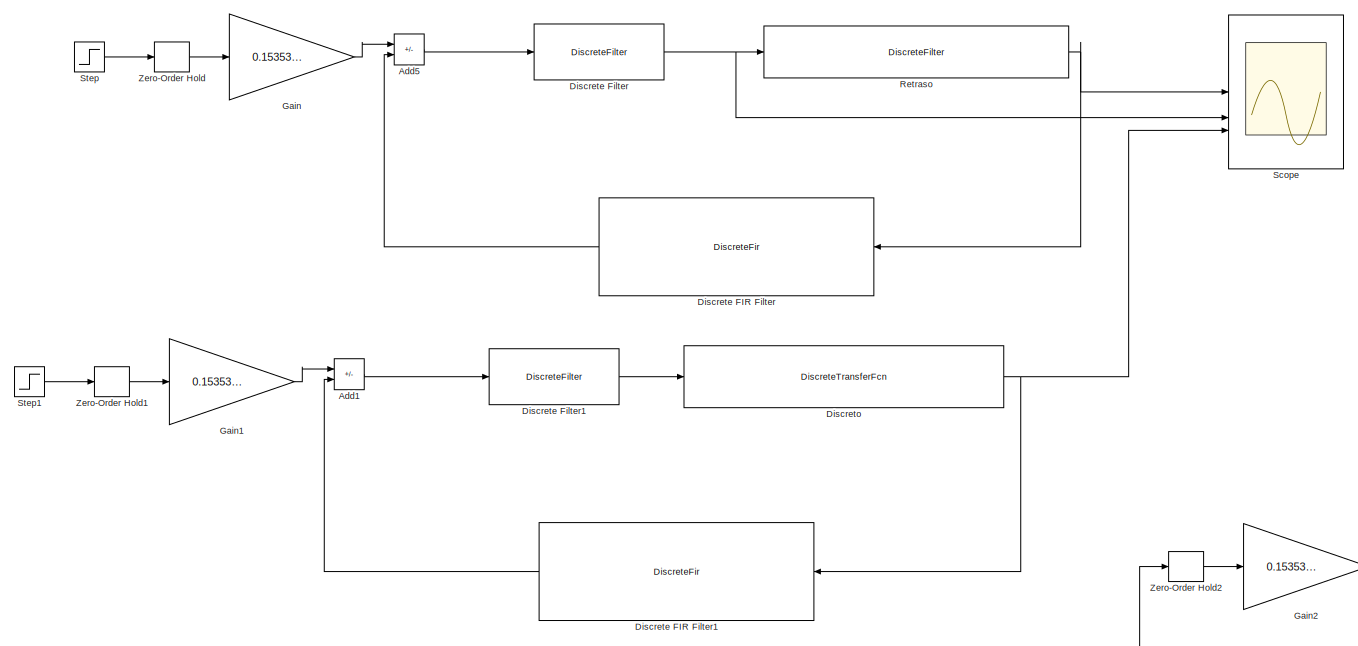
[diagram: root canvas - part 1/2, top left region]
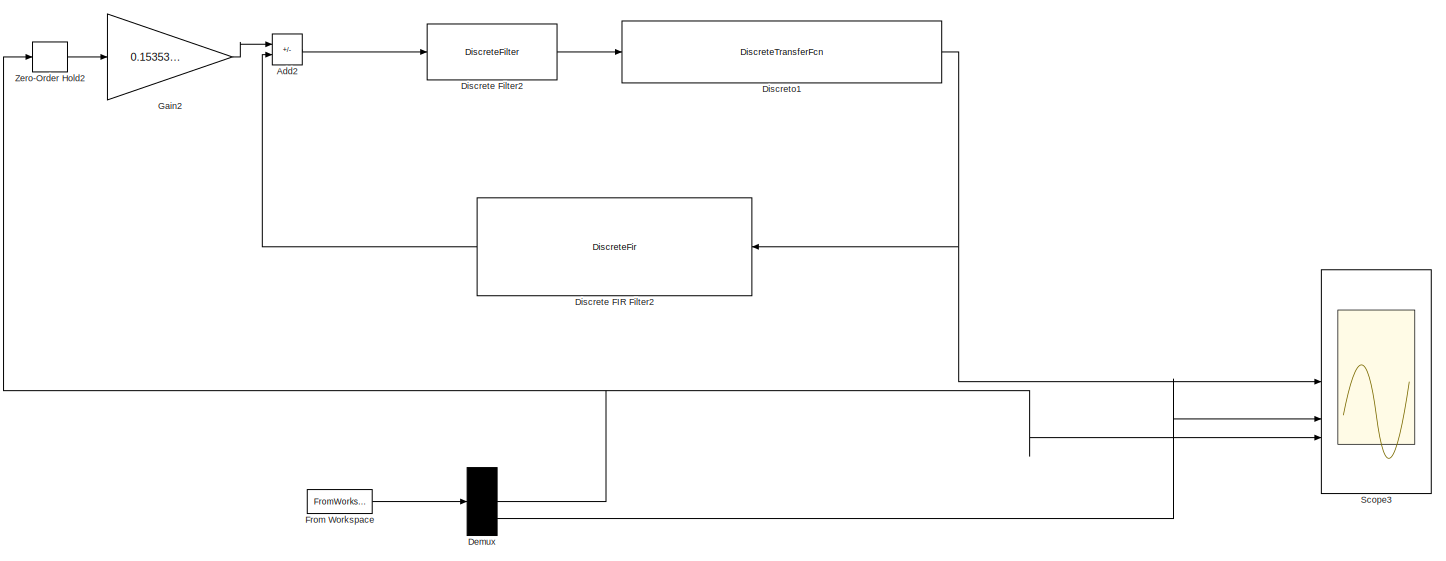
[diagram: root canvas - part 2/2, bottom right region]
MODEL slx_4d5562be1bf1
KIND model
CONFIG AbsTol = auto
CONFIG EnableMultiTasking = off
CONFIG FixedStep = auto
CONFIG MaxStep = auto
CONFIG MinStep = auto
CONFIG RelTol = 1e-3
CONFIG SampleTimeConstraint = Unconstrained
CONFIG SolverName = VariableStepAuto
CONFIG StartTime = 0.0
CONFIG StopTime = 60.0
BLOCK [Sum] Add1
  IconShape = rectangular
  Inputs = +-
BLOCK [Sum] Add2
  IconShape = rectangular
  Inputs = +-
BLOCK [Sum] Add5
  IconShape = rectangular
  Inputs = +-
BLOCK [Demux] Demux
  Outputs = 3
BLOCK [DiscreteFir] Discrete FIR Filter
  Coefficients = [ 2.079050275705499 -1.925512816401701]
  InputPortMap = u0
  NameLocation = top
  OutputPortMap = o0
BLOCK [DiscreteFir] Discrete FIR Filter1
  Coefficients = [ 2.079050275705499 -1.925512816401701]
  InputPortMap = u0
  NameLocation = top
  OutputPortMap = o0
BLOCK [DiscreteFir] Discrete FIR Filter2
  Coefficients = [ 2.079050275705499 -1.925512816401701]
  InputPortMap = u0
  NameLocation = top
  OutputPortMap = o0
BLOCK [DiscreteFilter] Discrete Filter
  Denominator = [1 -0.579460982817054]
  InputPortMap = u0
BLOCK [DiscreteFilter] Discrete Filter1
  Denominator = [1 -0.579460982817054]
  InputPortMap = u0
BLOCK [DiscreteFilter] Discrete Filter2
  Denominator = [1 -0.579460982817054]
  InputPortMap = u0
BLOCK [DiscreteTransferFcn] Discreto
  Denominator = [1 -1.946644960048911 0.946644960048911]
  InputPortMap = u0
  Numerator = [0 0.002856503471888 0.002804770356280]
BLOCK [DiscreteTransferFcn] Discreto1
  Denominator = [1 -1.946644960048911 0.946644960048911]
  InputPortMap = u0
  Numerator = [0 0.002856503471888 0.002804770356280]
BLOCK [FromWorkspace] From Workspace
  SampleTime = 0.01
  VariableName = datos
BLOCK [Gain] Gain
  Gain = 0.153537459303763
BLOCK [Gain] Gain1
  Gain = 0.153537459303763
BLOCK [Gain] Gain2
  Gain = 0.153537459303763
BLOCK [DiscreteFilter] Retraso
  Denominator = [1 -1.946644960048911 0.946644960048911]
  InputPortMap = u0
  Numerator = [0 0.002856503471888 0.002804770356280]
BLOCK [Scope] Scope
  Floating = off
  NumInputPorts = 3
  ScopeSpecificationString = Simulink.scopes.TimeScopeBlockCfg('CurrentConfiguration', extmgr.ConfigurationSet(extmgr.Configuration('Core','General UI',true),extmgr.Configuration('Core','Source UI',true),extmgr.Configuration('Sources','WiredSimulink',true),extmgr.Configuration('Visuals','Time Domain',true,'SerializedDisplays',{struct('MinYLimReal','0.1079','MaxYLimReal','0.94679','YLabelReal','','MinYLimMag','0.1079','MaxYLim...<+1797ch>
BLOCK [Scope] Scope3
  Floating = off
  NumInputPorts = 3
  ScopeSpecificationString = Simulink.scopes.TimeScopeBlockCfg('CurrentConfiguration', extmgr.ConfigurationSet(extmgr.Configuration('Core','General UI',true),extmgr.Configuration('Core','Source UI',true),extmgr.Configuration('Sources','WiredSimulink',true,'DataLoggingVariableName','ScopeData1'),extmgr.Configuration('Visuals','Time Domain',true,'SerializedDisplays',{struct('MinYLimReal','-6.68462','MaxYLimReal','20.40653','YLa...<+1635ch>
BLOCK [Step] Step
  SampleTime = 0
  Time = 0
BLOCK [Step] Step1
  SampleTime = 0
  Time = 0
BLOCK [ZeroOrderHold] Zero-Order Hold
  SampleTime = 0.01
BLOCK [ZeroOrderHold] Zero-Order Hold1
  SampleTime = 0.01
BLOCK [ZeroOrderHold] Zero-Order Hold2
  SampleTime = 0.01
LINE Add1:1 -> Discrete Filter1:1
LINE Add2:1 -> Discrete Filter2:1
LINE Add5:1 -> Discrete Filter:1
NET Demux:2 -> Scope3:3, Zero-Order Hold2:1
LINE Demux:3 -> Scope3:2
LINE Discrete FIR Filter1:1 -> Add1:2
LINE Discrete FIR Filter2:1 -> Add2:2
LINE Discrete FIR Filter:1 -> Add5:2
LINE Discrete Filter1:1 -> Discreto:1
LINE Discrete Filter2:1 -> Discreto1:1
NET Discrete Filter:1 -> Retraso:1, Scope:2
NET Discreto1:1 -> Discrete FIR Filter2:1, Scope3:1
NET Discreto:1 -> Discrete FIR Filter1:1, Scope:3
LINE From Workspace:1 -> Demux:1
LINE Gain1:1 -> Add1:1
LINE Gain2:1 -> Add2:1
LINE Gain:1 -> Add5:1
NET Retraso:1 -> Discrete FIR Filter:1, Scope:1
LINE Step1:1 -> Zero-Order Hold1:1
LINE Step:1 -> Zero-Order Hold:1
LINE Zero-Order Hold1:1 -> Gain1:1
LINE Zero-Order Hold2:1 -> Gain2:1
LINE Zero-Order Hold:1 -> Gain:1
note: NET lines group one-source signal fan-out (src -> all destinations, sorted); 1:1 wires keep LINE
